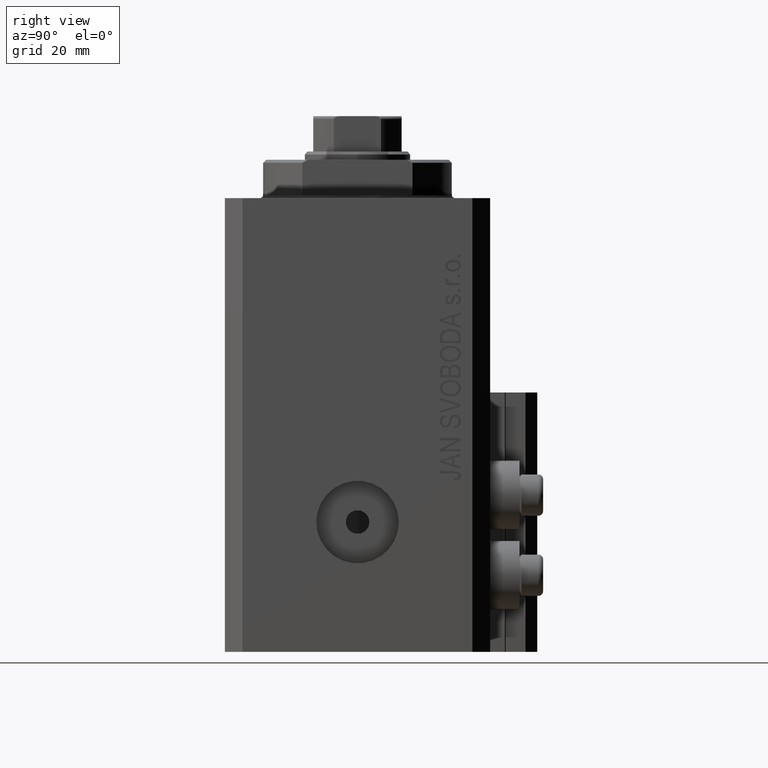
[diagram: clean part render]
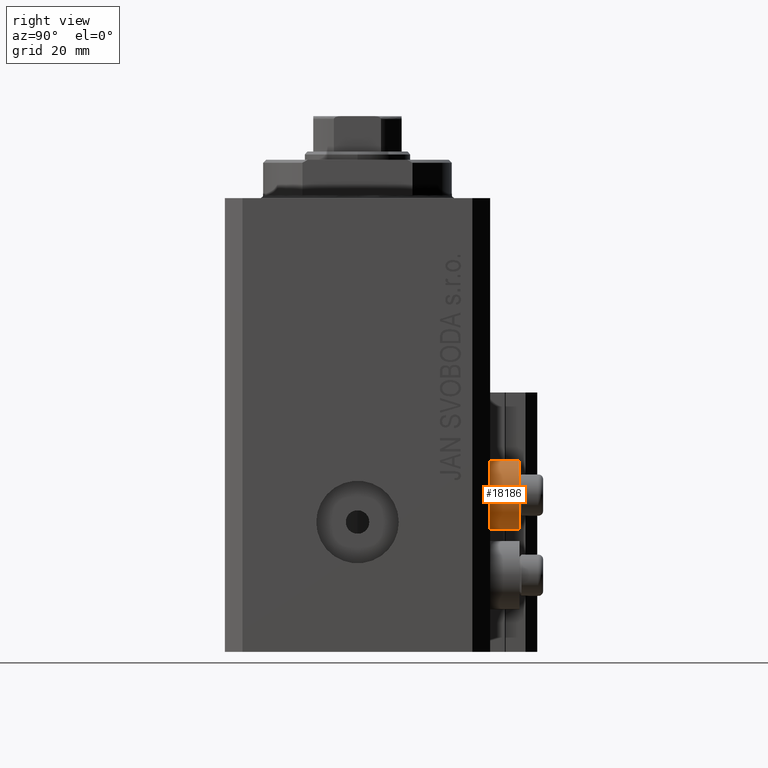
[diagram: same view with one face highlighted and labeled with its STEP entity id]
A machine part, right view. The second image highlights one B-rep face of the part: STEP entity #18186.
In plain terms, the highlighted cylindrical surface (edge-blend (fillet) strip) has radius 5.8 mm, axis along (0, 1, 0).
Its self-contained STEP definition (entity closure, byte-faithful):
#1423 = CARTESIAN_POINT ( 'NONE',  ( 18.00000000000000355, 22.49999999999951328, -56.20000000000000284 ) ) ;
#1540 = EDGE_CURVE ( 'NONE', #43591, #5822, #10129, .T. ) ;
#2327 = CYLINDRICAL_SURFACE ( 'NONE', #45073, 5.799999999999999822 ) ;
#4323 = CARTESIAN_POINT ( 'NONE',  ( 18.00000000000000355, 27.49999999996051514, -44.60000000000000142 ) ) ;
#5822 = VERTEX_POINT ( 'NONE', #35321 ) ;
#8942 = EDGE_CURVE ( 'NONE', #15475, #43591, #32490, .T. ) ;
#9404 = EDGE_LOOP ( 'NONE', ( #29025, #29340, #28403, #44022 ) ) ;
#10129 = CIRCLE ( 'NONE', #33754, 5.799999999999999822 ) ;
#10169 = VERTEX_POINT ( 'NONE', #43038 ) ;
#10421 = CARTESIAN_POINT ( 'NONE',  ( 18.00000000000000355, 27.49999999996051514, -50.39999999999999858 ) ) ;
#11559 = DIRECTION ( 'NONE',  ( -0.000000000000000000, -1.000000000000000000, -0.000000000000000000 ) ) ;
#12303 = CARTESIAN_POINT ( 'NONE',  ( 18.00000000000000355, 22.49999999999951328, -50.39999999999999858 ) ) ;
#14810 = DIRECTION ( 'NONE',  ( 0.000000000000000000, 1.000000000000000000, 0.000000000000000000 ) ) ;
#15375 = VECTOR ( 'NONE', #14810, 1000.000000000000000 ) ;
#15475 = VERTEX_POINT ( 'NONE', #1423 ) ;
#16279 = EDGE_CURVE ( 'NONE', #10169, #5822, #44202, .T. ) ;
#18186 = ADVANCED_FACE ( 'NONE', ( #24538 ), #2327, .T. ) ;
#18390 = CARTESIAN_POINT ( 'NONE',  ( 18.00000000000000355, 27.49999999996051514, -56.20000000000000284 ) ) ;
#21449 = AXIS2_PLACEMENT_3D ( 'NONE', #12303, #44339, #44568 ) ;
#24538 = FACE_OUTER_BOUND ( 'NONE', #9404, .T. ) ;
#26010 = CIRCLE ( 'NONE', #21449, 5.799999999999999822 ) ;
#26141 = DIRECTION ( 'NONE',  ( 0.000000000000000000, 0.000000000000000000, 1.000000000000000000 ) ) ;
#27348 = EDGE_CURVE ( 'NONE', #15475, #10169, #26010, .T. ) ;
#28403 = ORIENTED_EDGE ( 'NONE', *, *, #1540, .T. ) ;
#29025 = ORIENTED_EDGE ( 'NONE', *, *, #27348, .F. ) ;
#29340 = ORIENTED_EDGE ( 'NONE', *, *, #8942, .T. ) ;
#32490 = LINE ( 'NONE', #18390, #15375 ) ;
#33448 = DIRECTION ( 'NONE',  ( 0.000000000000000000, 1.000000000000000000, 0.000000000000000000 ) ) ;
#33754 = AXIS2_PLACEMENT_3D ( 'NONE', #37570, #11559, #26141 ) ;
#35321 = CARTESIAN_POINT ( 'NONE',  ( 18.00000000000000355, 27.49999999996051514, -44.60000000000000142 ) ) ;
#35743 = DIRECTION ( 'NONE',  ( 0.000000000000000000, 0.000000000000000000, 1.000000000000000000 ) ) ;
#35985 = DIRECTION ( 'NONE',  ( 0.000000000000000000, 1.000000000000000000, 0.000000000000000000 ) ) ;
#37570 = CARTESIAN_POINT ( 'NONE',  ( 18.00000000000000355, 27.49999999996051514, -50.39999999999999858 ) ) ;
#38915 = VECTOR ( 'NONE', #33448, 1000.000000000000000 ) ;
#42213 = CARTESIAN_POINT ( 'NONE',  ( 18.00000000000000355, 27.49999999996051514, -56.20000000000000284 ) ) ;
#43038 = CARTESIAN_POINT ( 'NONE',  ( 18.00000000000000355, 22.49999999999951328, -44.60000000000000142 ) ) ;
#43591 = VERTEX_POINT ( 'NONE', #42213 ) ;
#44022 = ORIENTED_EDGE ( 'NONE', *, *, #16279, .F. ) ;
#44202 = LINE ( 'NONE', #4323, #38915 ) ;
#44339 = DIRECTION ( 'NONE',  ( -0.000000000000000000, -1.000000000000000000, -0.000000000000000000 ) ) ;
#44568 = DIRECTION ( 'NONE',  ( 0.000000000000000000, 0.000000000000000000, 1.000000000000000000 ) ) ;
#45073 = AXIS2_PLACEMENT_3D ( 'NONE', #10421, #35985, #35743 ) ;